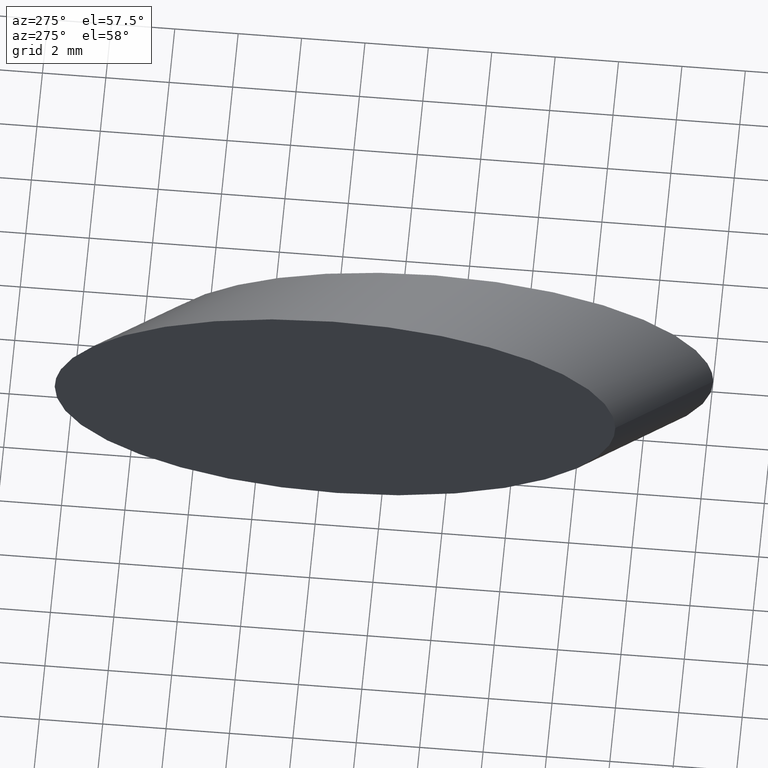
[diagram: clean part render]
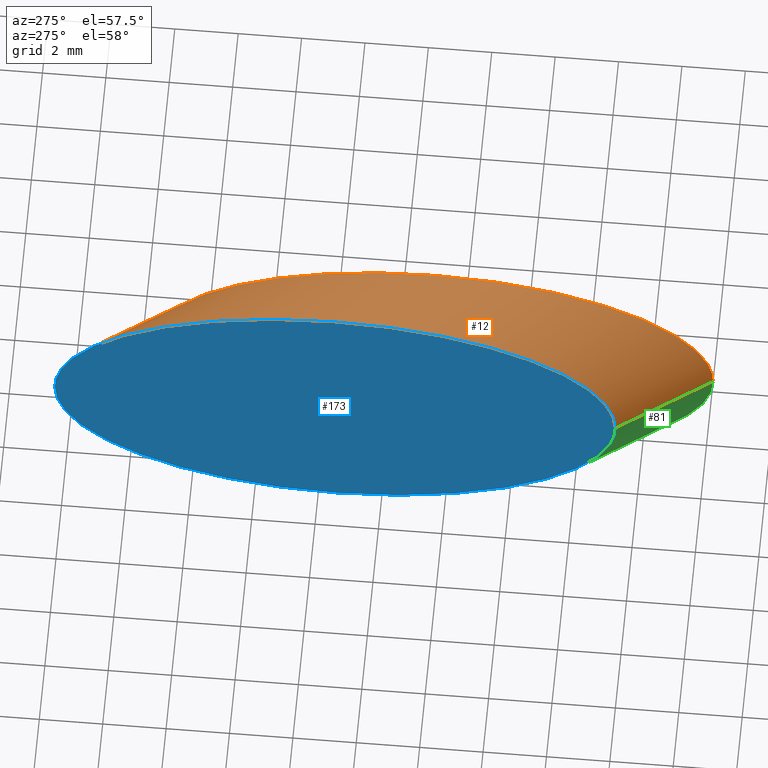
[diagram: same view with three faces highlighted in distinct colors, each labeled with its STEP entity id]
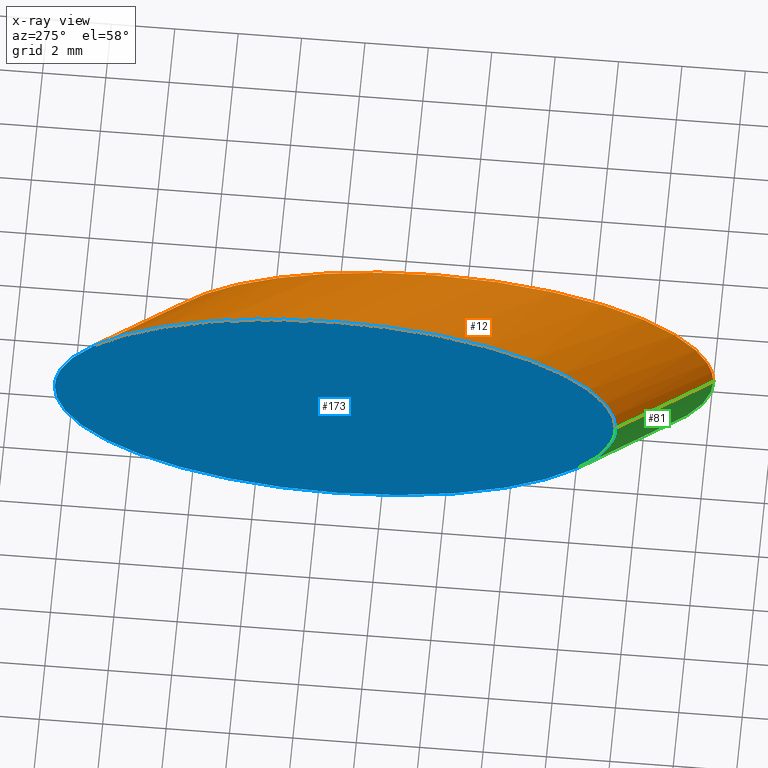
[diagram: x-ray of the same camera — body ghosted, the three highlighted faces saturated]
A machine part, auxiliary view with three faces highlighted in distinct colors.
The next image is the same camera in x-ray (body ghosted, the three faces saturated) — at least one of them is partly hidden behind the body in this view.
Their STEP definitions:

[orange] entity #12 — the highlighted cylindrical surface (partial cylindrical patch) has radius 5 mm, axis along (-0.5654, 0.8248, -0).
#10 = ORIENTED_EDGE ( 'NONE', *, *, #57, .F. ) ;
#12 = ADVANCED_FACE ( 'NONE', ( #88 ), #148, .T. ) ;
#17 = VERTEX_POINT ( 'NONE', #34 ) ;
#18 = VERTEX_POINT ( 'NONE', #116 ) ;
#19 = LINE ( 'NONE', #60, #61 ) ;
#22 = CARTESIAN_POINT ( 'NONE',  ( -1.000000000000004400, -7.383920638990183200, 9.999999999999998200 ) ) ;
#23 = CARTESIAN_POINT ( 'NONE',  ( 0.9999999999999993300, 7.383920638990180600, 9.999999999999998200 ) ) ;
#25 = CARTESIAN_POINT ( 'NONE',  ( 1.000000000000004400, -10.30120470850947500, 0.0000000000000000000 ) ) ;
#31 = ORIENTED_EDGE ( 'NONE', *, *, #69, .F. ) ;
#33 = CARTESIAN_POINT ( 'NONE',  ( 28.27234696816502400, -41.23923370907478200, 0.0000000000000000000 ) ) ;
#34 = CARTESIAN_POINT ( 'NONE',  ( -1.000000000000004400, 10.30120470850948100, 6.123233995736766300E-016 ) ) ;
#42 = DIRECTION ( 'NONE',  ( -0.5654469393633004800, 0.8247846741814957000, -0.0000000000000000000 ) ) ;
#44 = CARTESIAN_POINT ( 'NONE',  ( -1.000000000000004400, 10.30120470850946600, 9.999999999999998200 ) ) ;
#45 = EDGE_LOOP ( 'NONE', ( #85, #73, #10, #31 ) ) ;
#48 = CARTESIAN_POINT ( 'NONE',  ( -1.000000000000004400, 10.30120470850948100, 6.123233995736766300E-016 ) ) ;
#57 = EDGE_CURVE ( 'NONE', #18, #17, #65, .T. ) ;
#58 = CARTESIAN_POINT ( 'NONE',  ( 1.000000000000000900, 7.383920638990182400, 6.123233995736766300E-016 ) ) ;
#60 = CARTESIAN_POINT ( 'NONE',  ( 24.14842359725754400, -44.06646840589129300, 0.0000000000000000000 ) ) ;
#61 = VECTOR ( 'NONE', #129, 1000.000000000000000 ) ;
#65 =( BOUNDED_CURVE ( )  B_SPLINE_CURVE ( 3, ( #131, #22, #44, #48 ),
 .UNSPECIFIED., .F., .F. ) 
 B_SPLINE_CURVE_WITH_KNOTS ( ( 4, 4 ),
 ( 3.141592653589793100, 6.283185307179586200 ),
 .UNSPECIFIED. ) 
 CURVE ( )  GEOMETRIC_REPRESENTATION_ITEM ( )  RATIONAL_B_SPLINE_CURVE ( ( 1.000000000000000000, 0.3333333333333333700, 0.3333333333333333700, 1.000000000000000000 ) ) 
 REPRESENTATION_ITEM ( '' )  );
#69 = EDGE_CURVE ( 'NONE', #112, #18, #19, .T. ) ;
#70 = VERTEX_POINT ( 'NONE', #58 ) ;
#71 = CARTESIAN_POINT ( 'NONE',  ( 32.39627033907250100, -38.41199901225827800, 6.123233995736766300E-016 ) ) ;
#73 = ORIENTED_EDGE ( 'NONE', *, *, #138, .T. ) ;
#74 = CARTESIAN_POINT ( 'NONE',  ( 1.000000000000004400, -10.30120470850947500, 0.0000000000000000000 ) ) ;
#85 = ORIENTED_EDGE ( 'NONE', *, *, #159, .F. ) ;
#88 = FACE_OUTER_BOUND ( 'NONE', #45, .T. ) ;
#89 = CARTESIAN_POINT ( 'NONE',  ( 1.000000000000000900, 7.383920638990182400, 6.123233995736766300E-016 ) ) ;
#103 = DIRECTION ( 'NONE',  ( -0.8247846741814954800, -0.5654469393633005900, 0.0000000000000000000 ) ) ;
#112 = VERTEX_POINT ( 'NONE', #25 ) ;
#115 = CARTESIAN_POINT ( 'NONE',  ( 1.000000000000002400, -10.30120470850946600, 9.999999999999998200 ) ) ;
#116 = CARTESIAN_POINT ( 'NONE',  ( -1.000000000000004400, -7.383920638990175300, 0.0000000000000000000 ) ) ;
#129 = DIRECTION ( 'NONE',  ( -0.5654469393633004800, 0.8247846741814957000, -0.0000000000000000000 ) ) ;
#130 =( BOUNDED_CURVE ( )  B_SPLINE_CURVE ( 3, ( #89, #23, #115, #74 ),
 .UNSPECIFIED., .F., .F. ) 
 B_SPLINE_CURVE_WITH_KNOTS ( ( 4, 4 ),
 ( 1.224646799147353200E-016, 3.141592653589793100 ),
 .UNSPECIFIED. ) 
 CURVE ( )  GEOMETRIC_REPRESENTATION_ITEM ( )  RATIONAL_B_SPLINE_CURVE ( ( 1.000000000000000000, 0.3333333333333333700, 0.3333333333333333700, 1.000000000000000000 ) ) 
 REPRESENTATION_ITEM ( '' )  );
#131 = CARTESIAN_POINT ( 'NONE',  ( -1.000000000000004400, -7.383920638990175300, 0.0000000000000000000 ) ) ;
#135 = VECTOR ( 'NONE', #42, 1000.000000000000000 ) ;
#138 = EDGE_CURVE ( 'NONE', #70, #17, #175, .T. ) ;
#148 = CYLINDRICAL_SURFACE ( 'NONE', #166, 5.000000000000003600 ) ;
#153 = DIRECTION ( 'NONE',  ( -0.5654469393633004800, 0.8247846741814957000, -0.0000000000000000000 ) ) ;
#159 = EDGE_CURVE ( 'NONE', #70, #112, #130, .T. ) ;
#166 = AXIS2_PLACEMENT_3D ( 'NONE', #33, #153, #103 ) ;
#175 = LINE ( 'NONE', #71, #135 ) ;

[blue] entity #173 — the highlighted planar face has unit normal (-1, 0, -0).
#17 = VERTEX_POINT ( 'NONE', #34 ) ;
#18 = VERTEX_POINT ( 'NONE', #116 ) ;
#21 = CARTESIAN_POINT ( 'NONE',  ( -1.000000000000004400, 10.30120470850948100, 6.123233995736766300E-016 ) ) ;
#22 = CARTESIAN_POINT ( 'NONE',  ( -1.000000000000004400, -7.383920638990183200, 9.999999999999998200 ) ) ;
#34 = CARTESIAN_POINT ( 'NONE',  ( -1.000000000000004400, 10.30120470850948100, 6.123233995736766300E-016 ) ) ;
#44 = CARTESIAN_POINT ( 'NONE',  ( -1.000000000000004400, 10.30120470850946600, 9.999999999999998200 ) ) ;
#48 = CARTESIAN_POINT ( 'NONE',  ( -1.000000000000004400, 10.30120470850948100, 6.123233995736766300E-016 ) ) ;
#57 = EDGE_CURVE ( 'NONE', #18, #17, #65, .T. ) ;
#65 =( BOUNDED_CURVE ( )  B_SPLINE_CURVE ( 3, ( #131, #22, #44, #48 ),
 .UNSPECIFIED., .F., .F. ) 
 B_SPLINE_CURVE_WITH_KNOTS ( ( 4, 4 ),
 ( 3.141592653589793100, 6.283185307179586200 ),
 .UNSPECIFIED. ) 
 CURVE ( )  GEOMETRIC_REPRESENTATION_ITEM ( )  RATIONAL_B_SPLINE_CURVE ( ( 1.000000000000000000, 0.3333333333333333700, 0.3333333333333333700, 1.000000000000000000 ) ) 
 REPRESENTATION_ITEM ( '' )  );
#76 = CARTESIAN_POINT ( 'NONE',  ( -1.000000000000004400, -7.383920638990178800, -9.999999999999998200 ) ) ;
#79 = DIRECTION ( 'NONE',  ( -1.000000000000000000, 0.0000000000000000000, -0.0000000000000000000 ) ) ;
#80 = AXIS2_PLACEMENT_3D ( 'NONE', #93, #79, #119 ) ;
#83 = EDGE_LOOP ( 'NONE', ( #156, #151 ) ) ;
#84 = EDGE_CURVE ( 'NONE', #17, #18, #122, .T. ) ;
#93 = CARTESIAN_POINT ( 'NONE',  ( -1.000000000000001600, 10.30120470850946600, -5.000000000000000000 ) ) ;
#104 = PLANE ( 'NONE',  #80 ) ;
#114 = CARTESIAN_POINT ( 'NONE',  ( -1.000000000000004400, -7.383920638990175300, 0.0000000000000000000 ) ) ;
#116 = CARTESIAN_POINT ( 'NONE',  ( -1.000000000000004400, -7.383920638990175300, 0.0000000000000000000 ) ) ;
#119 = DIRECTION ( 'NONE',  ( -0.0000000000000000000, 0.0000000000000000000, 1.000000000000000000 ) ) ;
#122 =( BOUNDED_CURVE ( )  B_SPLINE_CURVE ( 3, ( #21, #167, #76, #114 ),
 .UNSPECIFIED., .F., .T. ) 
 B_SPLINE_CURVE_WITH_KNOTS ( ( 4, 4 ),
 ( 0.0000000000000000000, 3.141592653589793100 ),
 .UNSPECIFIED. ) 
 CURVE ( )  GEOMETRIC_REPRESENTATION_ITEM ( )  RATIONAL_B_SPLINE_CURVE ( ( 1.000000000000000000, 0.3333333333333333700, 0.3333333333333333700, 1.000000000000000000 ) ) 
 REPRESENTATION_ITEM ( '' )  );
#131 = CARTESIAN_POINT ( 'NONE',  ( -1.000000000000004400, -7.383920638990175300, 0.0000000000000000000 ) ) ;
#151 = ORIENTED_EDGE ( 'NONE', *, *, #84, .T. ) ;
#156 = ORIENTED_EDGE ( 'NONE', *, *, #57, .T. ) ;
#167 = CARTESIAN_POINT ( 'NONE',  ( -1.000000000000004400, 10.30120470850946600, -9.999999999999998200 ) ) ;
#169 = FACE_OUTER_BOUND ( 'NONE', #83, .T. ) ;
#173 = ADVANCED_FACE ( 'NONE', ( #169 ), #104, .T. ) ;

[green] entity #81 — the highlighted cylindrical surface (partial cylindrical patch) has radius 5 mm, axis along (-0.5654, 0.8248, -0).
#4 = ORIENTED_EDGE ( 'NONE', *, *, #69, .T. ) ;
#17 = VERTEX_POINT ( 'NONE', #34 ) ;
#18 = VERTEX_POINT ( 'NONE', #116 ) ;
#19 = LINE ( 'NONE', #60, #61 ) ;
#21 = CARTESIAN_POINT ( 'NONE',  ( -1.000000000000004400, 10.30120470850948100, 6.123233995736766300E-016 ) ) ;
#25 = CARTESIAN_POINT ( 'NONE',  ( 1.000000000000004400, -10.30120470850947500, 0.0000000000000000000 ) ) ;
#32 = ORIENTED_EDGE ( 'NONE', *, *, #162, .F. ) ;
#34 = CARTESIAN_POINT ( 'NONE',  ( -1.000000000000004400, 10.30120470850948100, 6.123233995736766300E-016 ) ) ;
#42 = DIRECTION ( 'NONE',  ( -0.5654469393633004800, 0.8247846741814957000, -0.0000000000000000000 ) ) ;
#46 = DIRECTION ( 'NONE',  ( -0.8247846741814954800, -0.5654469393633005900, 0.0000000000000000000 ) ) ;
#47 = CARTESIAN_POINT ( 'NONE',  ( 1.000000000000002400, -10.30120470850947000, -9.999999999999998200 ) ) ;
#58 = CARTESIAN_POINT ( 'NONE',  ( 1.000000000000000900, 7.383920638990182400, 6.123233995736766300E-016 ) ) ;
#59 = CARTESIAN_POINT ( 'NONE',  ( 1.000000000000004400, -10.30120470850947500, 0.0000000000000000000 ) ) ;
#60 = CARTESIAN_POINT ( 'NONE',  ( 24.14842359725754400, -44.06646840589129300, 0.0000000000000000000 ) ) ;
#61 = VECTOR ( 'NONE', #129, 1000.000000000000000 ) ;
#67 = ORIENTED_EDGE ( 'NONE', *, *, #138, .F. ) ;
#69 = EDGE_CURVE ( 'NONE', #112, #18, #19, .T. ) ;
#70 = VERTEX_POINT ( 'NONE', #58 ) ;
#71 = CARTESIAN_POINT ( 'NONE',  ( 32.39627033907250100, -38.41199901225827800, 6.123233995736766300E-016 ) ) ;
#72 = FACE_OUTER_BOUND ( 'NONE', #107, .T. ) ;
#76 = CARTESIAN_POINT ( 'NONE',  ( -1.000000000000004400, -7.383920638990178800, -9.999999999999998200 ) ) ;
#81 = ADVANCED_FACE ( 'NONE', ( #72 ), #140, .T. ) ;
#84 = EDGE_CURVE ( 'NONE', #17, #18, #122, .T. ) ;
#86 = CARTESIAN_POINT ( 'NONE',  ( 1.000000000000000900, 7.383920638990182400, 6.123233995736766300E-016 ) ) ;
#99 = AXIS2_PLACEMENT_3D ( 'NONE', #154, #155, #46 ) ;
#107 = EDGE_LOOP ( 'NONE', ( #67, #32, #4, #120 ) ) ;
#112 = VERTEX_POINT ( 'NONE', #25 ) ;
#114 = CARTESIAN_POINT ( 'NONE',  ( -1.000000000000004400, -7.383920638990175300, 0.0000000000000000000 ) ) ;
#116 = CARTESIAN_POINT ( 'NONE',  ( -1.000000000000004400, -7.383920638990175300, 0.0000000000000000000 ) ) ;
#120 = ORIENTED_EDGE ( 'NONE', *, *, #84, .F. ) ;
#122 =( BOUNDED_CURVE ( )  B_SPLINE_CURVE ( 3, ( #21, #167, #76, #114 ),
 .UNSPECIFIED., .F., .T. ) 
 B_SPLINE_CURVE_WITH_KNOTS ( ( 4, 4 ),
 ( 0.0000000000000000000, 3.141592653589793100 ),
 .UNSPECIFIED. ) 
 CURVE ( )  GEOMETRIC_REPRESENTATION_ITEM ( )  RATIONAL_B_SPLINE_CURVE ( ( 1.000000000000000000, 0.3333333333333333700, 0.3333333333333333700, 1.000000000000000000 ) ) 
 REPRESENTATION_ITEM ( '' )  );
#129 = DIRECTION ( 'NONE',  ( -0.5654469393633004800, 0.8247846741814957000, -0.0000000000000000000 ) ) ;
#134 =( BOUNDED_CURVE ( )  B_SPLINE_CURVE ( 3, ( #59, #47, #170, #86 ),
 .UNSPECIFIED., .F., .T. ) 
 B_SPLINE_CURVE_WITH_KNOTS ( ( 4, 4 ),
 ( 3.141592653589793100, 6.283185307179586200 ),
 .UNSPECIFIED. ) 
 CURVE ( )  GEOMETRIC_REPRESENTATION_ITEM ( )  RATIONAL_B_SPLINE_CURVE ( ( 1.000000000000000000, 0.3333333333333333700, 0.3333333333333333700, 1.000000000000000000 ) ) 
 REPRESENTATION_ITEM ( '' )  );
#135 = VECTOR ( 'NONE', #42, 1000.000000000000000 ) ;
#138 = EDGE_CURVE ( 'NONE', #70, #17, #175, .T. ) ;
#140 = CYLINDRICAL_SURFACE ( 'NONE', #99, 5.000000000000003600 ) ;
#154 = CARTESIAN_POINT ( 'NONE',  ( 28.27234696816502400, -41.23923370907478200, 0.0000000000000000000 ) ) ;
#155 = DIRECTION ( 'NONE',  ( -0.5654469393633004800, 0.8247846741814957000, -0.0000000000000000000 ) ) ;
#162 = EDGE_CURVE ( 'NONE', #112, #70, #134, .T. ) ;
#167 = CARTESIAN_POINT ( 'NONE',  ( -1.000000000000004400, 10.30120470850946600, -9.999999999999998200 ) ) ;
#170 = CARTESIAN_POINT ( 'NONE',  ( 0.9999999999999993300, 7.383920638990183200, -9.999999999999998200 ) ) ;
#175 = LINE ( 'NONE', #71, #135 ) ;